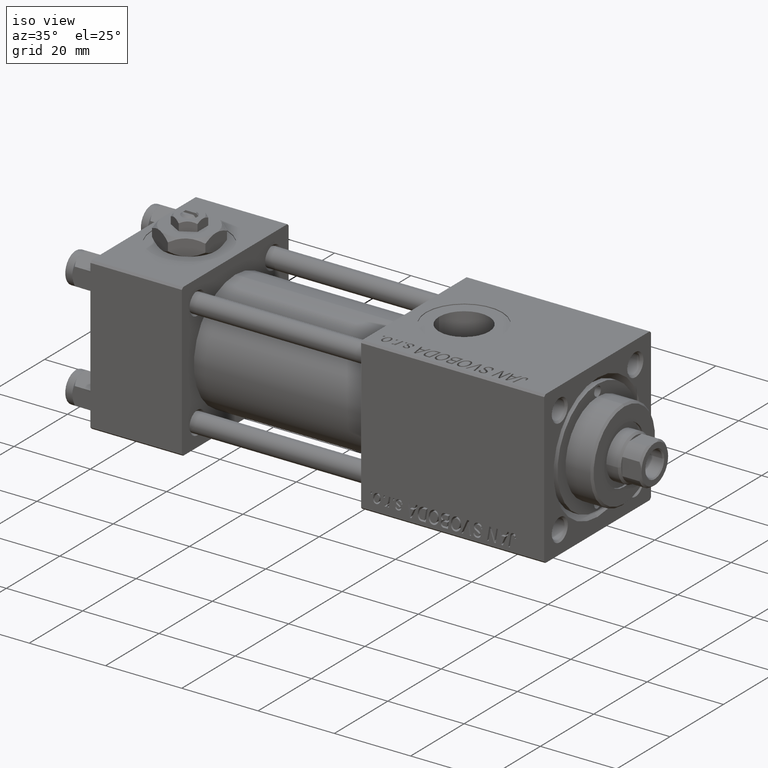
[diagram: clean part render]
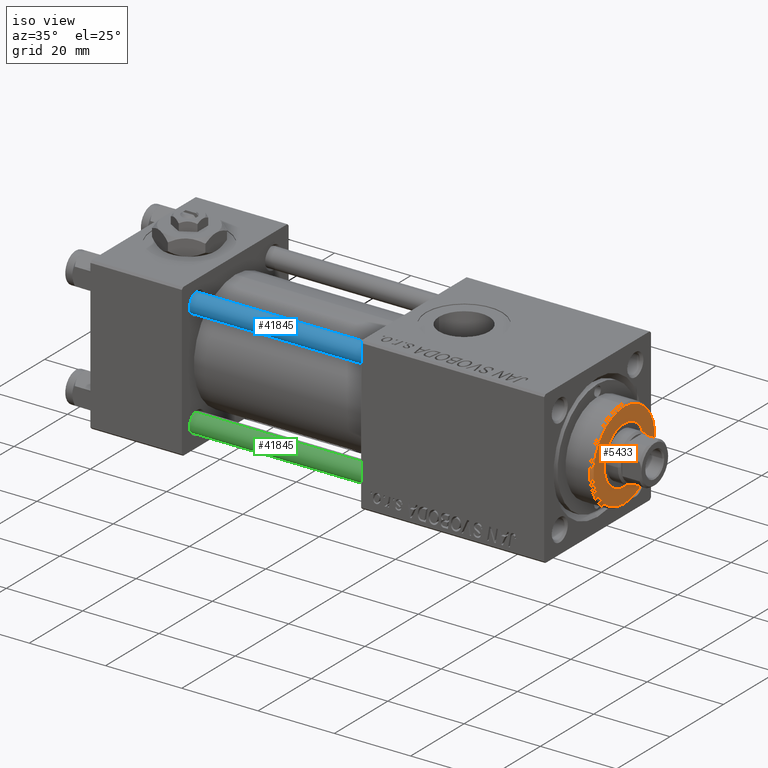
[diagram: same view with three faces highlighted in distinct colors, each labeled with its STEP entity id]
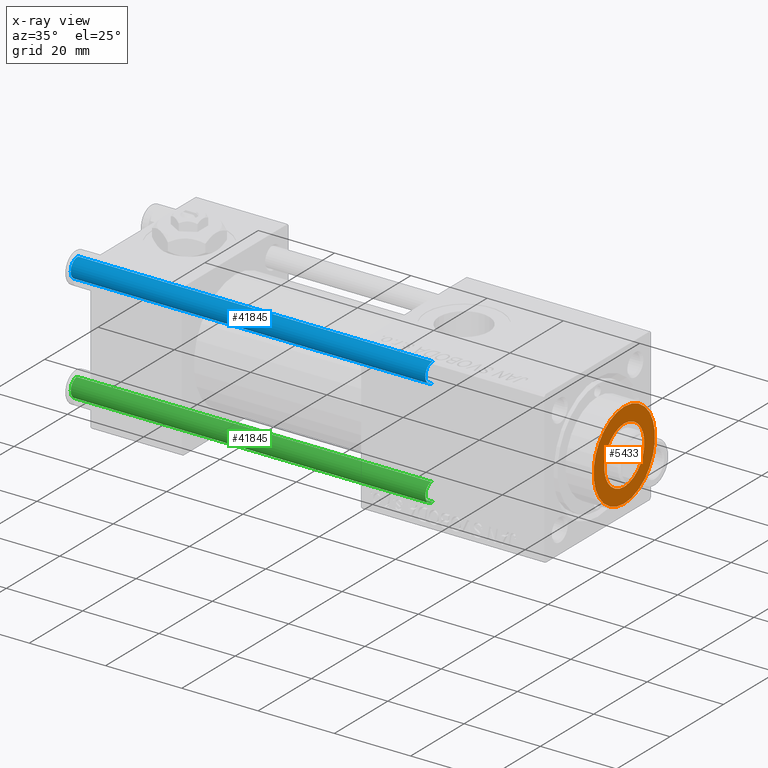
[diagram: x-ray of the same camera — body ghosted, the three highlighted faces saturated]
A machine part, iso view with three faces highlighted in distinct colors.
The next image is the same camera in x-ray (body ghosted, the three faces saturated) — at least one of them is partly hidden behind the body in this view.
Their STEP definitions:

[orange] entity #5433 — the highlighted planar face has unit normal (1, 0, 0).
#653 = EDGE_CURVE ( 'NONE', #39884, #17990, #14369, .T. ) ;
#1192 = FACE_BOUND ( 'NONE', #35051, .T. ) ;
#1449 = CARTESIAN_POINT ( 'NONE',  ( 0.000000000000000000, 0.000000000000000000, 35.70000000000000284 ) ) ;
#1655 = CIRCLE ( 'NONE', #49905, 7.500000000000000888 ) ;
#1666 = EDGE_CURVE ( 'NONE', #28302, #34493, #1655, .T. ) ;
#1708 = DIRECTION ( 'NONE',  ( 0.000000000000000000, 0.000000000000000000, 1.000000000000000000 ) ) ;
#1821 = CIRCLE ( 'NONE', #31338, 11.49999999999999645 ) ;
#4901 = DIRECTION ( 'NONE',  ( 0.000000000000000000, 0.000000000000000000, 1.000000000000000000 ) ) ;
#5253 = EDGE_CURVE ( 'NONE', #34493, #28302, #26244, .T. ) ;
#5433 = ADVANCED_FACE ( 'NONE', ( #1192, #25477 ), #37661, .T. ) ;
#10542 = DIRECTION ( 'NONE',  ( 1.000000000000000000, 0.000000000000000000, 0.000000000000000000 ) ) ;
#10550 = ORIENTED_EDGE ( 'NONE', *, *, #653, .T. ) ;
#11540 = DIRECTION ( 'NONE',  ( 0.000000000000000000, 0.000000000000000000, 1.000000000000000000 ) ) ;
#14369 = CIRCLE ( 'NONE', #27903, 11.49999999999999645 ) ;
#14499 = DIRECTION ( 'NONE',  ( 0.000000000000000000, 0.000000000000000000, 1.000000000000000000 ) ) ;
#17798 = DIRECTION ( 'NONE',  ( 1.000000000000000000, 0.000000000000000000, -0.000000000000000000 ) ) ;
#17990 = VERTEX_POINT ( 'NONE', #34195 ) ;
#18972 = EDGE_LOOP ( 'NONE', ( #10550, #23437 ) ) ;
#20454 = CARTESIAN_POINT ( 'NONE',  ( 0.000000000000000000, 0.000000000000000000, 35.70000000000000284 ) ) ;
#22747 = ORIENTED_EDGE ( 'NONE', *, *, #5253, .F. ) ;
#23437 = ORIENTED_EDGE ( 'NONE', *, *, #50858, .T. ) ;
#23611 = CARTESIAN_POINT ( 'NONE',  ( 0.000000000000000000, 0.000000000000000000, 35.70000000000000284 ) ) ;
#23726 = AXIS2_PLACEMENT_3D ( 'NONE', #20454, #4901, #36093 ) ;
#25477 = FACE_OUTER_BOUND ( 'NONE', #18972, .T. ) ;
#26244 = CIRCLE ( 'NONE', #23726, 7.500000000000000888 ) ;
#26671 = CARTESIAN_POINT ( 'NONE',  ( 0.000000000000000000, 0.000000000000000000, 35.70000000000000284 ) ) ;
#27869 = DIRECTION ( 'NONE',  ( 0.000000000000000000, 0.000000000000000000, 1.000000000000000000 ) ) ;
#27903 = AXIS2_PLACEMENT_3D ( 'NONE', #26671, #14499, #10542 ) ;
#28302 = VERTEX_POINT ( 'NONE', #31120 ) ;
#31120 = CARTESIAN_POINT ( 'NONE',  ( -7.500000000000000888, 9.184850993605149917E-16, 35.70000000000000284 ) ) ;
#31338 = AXIS2_PLACEMENT_3D ( 'NONE', #48075, #11540, #36146 ) ;
#32024 = CARTESIAN_POINT ( 'NONE',  ( -11.49999999999999645, 0.000000000000000000, 35.70000000000000284 ) ) ;
#34195 = CARTESIAN_POINT ( 'NONE',  ( 11.49999999999999645, 1.438959988998139963E-15, 35.70000000000000284 ) ) ;
#34493 = VERTEX_POINT ( 'NONE', #41643 ) ;
#34688 = AXIS2_PLACEMENT_3D ( 'NONE', #1449, #1708, #17798 ) ;
#35051 = EDGE_LOOP ( 'NONE', ( #22747, #36250 ) ) ;
#36093 = DIRECTION ( 'NONE',  ( 1.000000000000000000, 0.000000000000000000, 0.000000000000000000 ) ) ;
#36146 = DIRECTION ( 'NONE',  ( 1.000000000000000000, 0.000000000000000000, 0.000000000000000000 ) ) ;
#36250 = ORIENTED_EDGE ( 'NONE', *, *, #1666, .F. ) ;
#37661 = PLANE ( 'NONE',  #34688 ) ;
#39884 = VERTEX_POINT ( 'NONE', #32024 ) ;
#41643 = CARTESIAN_POINT ( 'NONE',  ( 7.500000000000000888, 0.000000000000000000, 35.70000000000000284 ) ) ;
#48075 = CARTESIAN_POINT ( 'NONE',  ( 0.000000000000000000, 0.000000000000000000, 35.70000000000000284 ) ) ;
#48260 = DIRECTION ( 'NONE',  ( 1.000000000000000000, 0.000000000000000000, 0.000000000000000000 ) ) ;
#49905 = AXIS2_PLACEMENT_3D ( 'NONE', #23611, #27869, #48260 ) ;
#50858 = EDGE_CURVE ( 'NONE', #17990, #39884, #1821, .T. ) ;

[blue] entity #41845 — the highlighted cylindrical surface (edge-blend (fillet) strip) has radius 2.5 mm, axis along (1, 0, -0).
#1874 = ORIENTED_EDGE ( 'NONE', *, *, #12879, .T. ) ;
#6099 = EDGE_CURVE ( 'NONE', #21900, #10838, #31323, .T. ) ;
#6366 = CARTESIAN_POINT ( 'NONE',  ( 0.000000000000000000, 0.000000000000000000, 94.00000000000000000 ) ) ;
#8310 = AXIS2_PLACEMENT_3D ( 'NONE', #20436, #21480, #28396 ) ;
#8349 = ORIENTED_EDGE ( 'NONE', *, *, #23883, .F. ) ;
#8503 = VERTEX_POINT ( 'NONE', #16339 ) ;
#8684 = CARTESIAN_POINT ( 'NONE',  ( -2.500000000000000000, 0.000000000000000000, 93.50000000000001421 ) ) ;
#10838 = VERTEX_POINT ( 'NONE', #12674 ) ;
#10841 = CIRCLE ( 'NONE', #8310, 2.500000000000000000 ) ;
#12674 = CARTESIAN_POINT ( 'NONE',  ( 2.500000000000000000, 3.061616997868383141E-16, 93.50000000000001421 ) ) ;
#12879 = EDGE_CURVE ( 'NONE', #10838, #8503, #32095, .T. ) ;
#13759 = DIRECTION ( 'NONE',  ( -1.000000000000000000, 0.000000000000000000, 0.000000000000000000 ) ) ;
#13846 = VECTOR ( 'NONE', #16728, 1000.000000000000000 ) ;
#16339 = CARTESIAN_POINT ( 'NONE',  ( 2.500000000000000000, 3.061616997868383141E-16, 0.5000000000000004441 ) ) ;
#16728 = DIRECTION ( 'NONE',  ( -0.000000000000000000, -0.000000000000000000, -1.000000000000000000 ) ) ;
#18611 = AXIS2_PLACEMENT_3D ( 'NONE', #51001, #43340, #26655 ) ;
#19163 = VECTOR ( 'NONE', #47118, 1000.000000000000000 ) ;
#20436 = CARTESIAN_POINT ( 'NONE',  ( 0.000000000000000000, 0.000000000000000000, 0.5000000000000004441 ) ) ;
#20954 = CARTESIAN_POINT ( 'NONE',  ( 2.500000000000000000, 3.061616997868383141E-16, 94.00000000000000000 ) ) ;
#21480 = DIRECTION ( 'NONE',  ( -0.000000000000000000, -0.000000000000000000, 1.000000000000000000 ) ) ;
#21854 = AXIS2_PLACEMENT_3D ( 'NONE', #6366, #34641, #13759 ) ;
#21900 = VERTEX_POINT ( 'NONE', #8684 ) ;
#23883 = EDGE_CURVE ( 'NONE', #21900, #36172, #42633, .T. ) ;
#26655 = DIRECTION ( 'NONE',  ( 1.000000000000000000, 0.000000000000000000, 0.000000000000000000 ) ) ;
#28396 = DIRECTION ( 'NONE',  ( 1.000000000000000000, 0.000000000000000000, 0.000000000000000000 ) ) ;
#28480 = EDGE_LOOP ( 'NONE', ( #49079, #1874, #47001, #8349 ) ) ;
#31323 = CIRCLE ( 'NONE', #18611, 2.500000000000000000 ) ;
#32095 = LINE ( 'NONE', #20954, #13846 ) ;
#34641 = DIRECTION ( 'NONE',  ( -0.000000000000000000, -0.000000000000000000, -1.000000000000000000 ) ) ;
#36172 = VERTEX_POINT ( 'NONE', #41784 ) ;
#38881 = FACE_OUTER_BOUND ( 'NONE', #28480, .T. ) ;
#40437 = EDGE_CURVE ( 'NONE', #8503, #36172, #10841, .T. ) ;
#41784 = CARTESIAN_POINT ( 'NONE',  ( -2.500000000000000000, 0.000000000000000000, 0.5000000000000004441 ) ) ;
#41845 = ADVANCED_FACE ( 'NONE', ( #38881 ), #46584, .T. ) ;
#42633 = LINE ( 'NONE', #51077, #19163 ) ;
#43340 = DIRECTION ( 'NONE',  ( 0.000000000000000000, 0.000000000000000000, -1.000000000000000000 ) ) ;
#46584 = CYLINDRICAL_SURFACE ( 'NONE', #21854, 2.500000000000000000 ) ;
#47001 = ORIENTED_EDGE ( 'NONE', *, *, #40437, .T. ) ;
#47118 = DIRECTION ( 'NONE',  ( -0.000000000000000000, -0.000000000000000000, -1.000000000000000000 ) ) ;
#49079 = ORIENTED_EDGE ( 'NONE', *, *, #6099, .T. ) ;
#51001 = CARTESIAN_POINT ( 'NONE',  ( 0.000000000000000000, 0.000000000000000000, 93.50000000000001421 ) ) ;
#51077 = CARTESIAN_POINT ( 'NONE',  ( -2.500000000000000000, 0.000000000000000000, 94.00000000000000000 ) ) ;

[green] entity #41845 — the highlighted cylindrical surface (edge-blend (fillet) strip) has radius 2.5 mm, axis along (-1, -0, -0).
#1874 = ORIENTED_EDGE ( 'NONE', *, *, #12879, .T. ) ;
#6099 = EDGE_CURVE ( 'NONE', #21900, #10838, #31323, .T. ) ;
#6366 = CARTESIAN_POINT ( 'NONE',  ( 0.000000000000000000, 0.000000000000000000, 94.00000000000000000 ) ) ;
#8310 = AXIS2_PLACEMENT_3D ( 'NONE', #20436, #21480, #28396 ) ;
#8349 = ORIENTED_EDGE ( 'NONE', *, *, #23883, .F. ) ;
#8503 = VERTEX_POINT ( 'NONE', #16339 ) ;
#8684 = CARTESIAN_POINT ( 'NONE',  ( -2.500000000000000000, 0.000000000000000000, 93.50000000000001421 ) ) ;
#10838 = VERTEX_POINT ( 'NONE', #12674 ) ;
#10841 = CIRCLE ( 'NONE', #8310, 2.500000000000000000 ) ;
#12674 = CARTESIAN_POINT ( 'NONE',  ( 2.500000000000000000, 3.061616997868383141E-16, 93.50000000000001421 ) ) ;
#12879 = EDGE_CURVE ( 'NONE', #10838, #8503, #32095, .T. ) ;
#13759 = DIRECTION ( 'NONE',  ( -1.000000000000000000, 0.000000000000000000, 0.000000000000000000 ) ) ;
#13846 = VECTOR ( 'NONE', #16728, 1000.000000000000000 ) ;
#16339 = CARTESIAN_POINT ( 'NONE',  ( 2.500000000000000000, 3.061616997868383141E-16, 0.5000000000000004441 ) ) ;
#16728 = DIRECTION ( 'NONE',  ( -0.000000000000000000, -0.000000000000000000, -1.000000000000000000 ) ) ;
#18611 = AXIS2_PLACEMENT_3D ( 'NONE', #51001, #43340, #26655 ) ;
#19163 = VECTOR ( 'NONE', #47118, 1000.000000000000000 ) ;
#20436 = CARTESIAN_POINT ( 'NONE',  ( 0.000000000000000000, 0.000000000000000000, 0.5000000000000004441 ) ) ;
#20954 = CARTESIAN_POINT ( 'NONE',  ( 2.500000000000000000, 3.061616997868383141E-16, 94.00000000000000000 ) ) ;
#21480 = DIRECTION ( 'NONE',  ( -0.000000000000000000, -0.000000000000000000, 1.000000000000000000 ) ) ;
#21854 = AXIS2_PLACEMENT_3D ( 'NONE', #6366, #34641, #13759 ) ;
#21900 = VERTEX_POINT ( 'NONE', #8684 ) ;
#23883 = EDGE_CURVE ( 'NONE', #21900, #36172, #42633, .T. ) ;
#26655 = DIRECTION ( 'NONE',  ( 1.000000000000000000, 0.000000000000000000, 0.000000000000000000 ) ) ;
#28396 = DIRECTION ( 'NONE',  ( 1.000000000000000000, 0.000000000000000000, 0.000000000000000000 ) ) ;
#28480 = EDGE_LOOP ( 'NONE', ( #49079, #1874, #47001, #8349 ) ) ;
#31323 = CIRCLE ( 'NONE', #18611, 2.500000000000000000 ) ;
#32095 = LINE ( 'NONE', #20954, #13846 ) ;
#34641 = DIRECTION ( 'NONE',  ( -0.000000000000000000, -0.000000000000000000, -1.000000000000000000 ) ) ;
#36172 = VERTEX_POINT ( 'NONE', #41784 ) ;
#38881 = FACE_OUTER_BOUND ( 'NONE', #28480, .T. ) ;
#40437 = EDGE_CURVE ( 'NONE', #8503, #36172, #10841, .T. ) ;
#41784 = CARTESIAN_POINT ( 'NONE',  ( -2.500000000000000000, 0.000000000000000000, 0.5000000000000004441 ) ) ;
#41845 = ADVANCED_FACE ( 'NONE', ( #38881 ), #46584, .T. ) ;
#42633 = LINE ( 'NONE', #51077, #19163 ) ;
#43340 = DIRECTION ( 'NONE',  ( 0.000000000000000000, 0.000000000000000000, -1.000000000000000000 ) ) ;
#46584 = CYLINDRICAL_SURFACE ( 'NONE', #21854, 2.500000000000000000 ) ;
#47001 = ORIENTED_EDGE ( 'NONE', *, *, #40437, .T. ) ;
#47118 = DIRECTION ( 'NONE',  ( -0.000000000000000000, -0.000000000000000000, -1.000000000000000000 ) ) ;
#49079 = ORIENTED_EDGE ( 'NONE', *, *, #6099, .T. ) ;
#51001 = CARTESIAN_POINT ( 'NONE',  ( 0.000000000000000000, 0.000000000000000000, 93.50000000000001421 ) ) ;
#51077 = CARTESIAN_POINT ( 'NONE',  ( -2.500000000000000000, 0.000000000000000000, 94.00000000000000000 ) ) ;